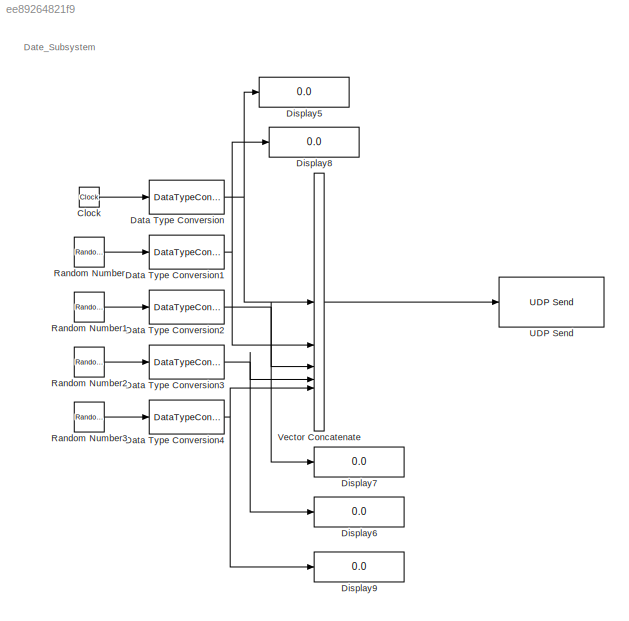
MODEL slx_ee89264821f9
KIND model
CONFIG AbsTol = auto
CONFIG EnableMultiTasking = off
CONFIG FixedStep = 0.01
CONFIG MaxStep = auto
CONFIG MinStep = auto
CONFIG RelTol = 1e-3
CONFIG SampleTimeConstraint = Unconstrained
CONFIG SolverName = FixedStepDiscrete
CONFIG StartTime = 0.0
CONFIG StopTime = 0.02
BLOCK [Clock] Clock
BLOCK [DataTypeConversion] Data Type Conversion
  OutDataTypeStr = single
  RndMeth = Floor
  SaturateOnIntegerOverflow = off
BLOCK [DataTypeConversion] Data Type Conversion1
  OutDataTypeStr = single
  RndMeth = Floor
  SaturateOnIntegerOverflow = off
BLOCK [DataTypeConversion] Data Type Conversion2
  OutDataTypeStr = single
  RndMeth = Floor
  SaturateOnIntegerOverflow = off
BLOCK [DataTypeConversion] Data Type Conversion3
  OutDataTypeStr = single
  RndMeth = Floor
  SaturateOnIntegerOverflow = off
BLOCK [DataTypeConversion] Data Type Conversion4
  OutDataTypeStr = single
  RndMeth = Floor
  SaturateOnIntegerOverflow = off
BLOCK [Display] Display5
  Decimation = 1
BLOCK [Display] Display6
  Decimation = 1
BLOCK [Display] Display7
  Decimation = 1
BLOCK [Display] Display8
  Decimation = 1
BLOCK [Display] Display9
  Decimation = 1
BLOCK [RandomNumber] Random Number
  SampleTime = 0.01
  Seed = 1
BLOCK [RandomNumber] Random Number1
  SampleTime = .01
  Seed = 5
BLOCK [RandomNumber] Random Number2
  SampleTime = 0.01
  Seed = 8
BLOCK [RandomNumber] Random Number3
  SampleTime = 0.01
  Seed = 11
BLOCK [Reference] UDP Send  REF=dspnetwork/UDP Send
  LibrarySourceBlock = dspsnks4/UDP Send
  SourceBlock = dspnetwork/UDP Send
  SourceType = UDP Send
BLOCK [Concatenate] Vector Concatenate
  Mode = Multidimensional array
  NumInputs = 5
ANNOTATION (root): Date_Subsystem
LINE Clock:1 -> Data Type Conversion:1
NET Data Type Conversion1:1 -> Display8:1, Vector Concatenate:2
NET Data Type Conversion2:1 -> Display7:1, Vector Concatenate:3
NET Data Type Conversion3:1 -> Display6:1, Vector Concatenate:4
NET Data Type Conversion4:1 -> Display9:1, Vector Concatenate:5
NET Data Type Conversion:1 -> Display5:1, Vector Concatenate:1
LINE Random Number1:1 -> Data Type Conversion2:1
LINE Random Number2:1 -> Data Type Conversion3:1
LINE Random Number3:1 -> Data Type Conversion4:1
LINE Random Number:1 -> Data Type Conversion1:1
LINE Vector Concatenate:1 -> UDP Send:1
note: NET lines group one-source signal fan-out (src -> all destinations, sorted); 1:1 wires keep LINE
